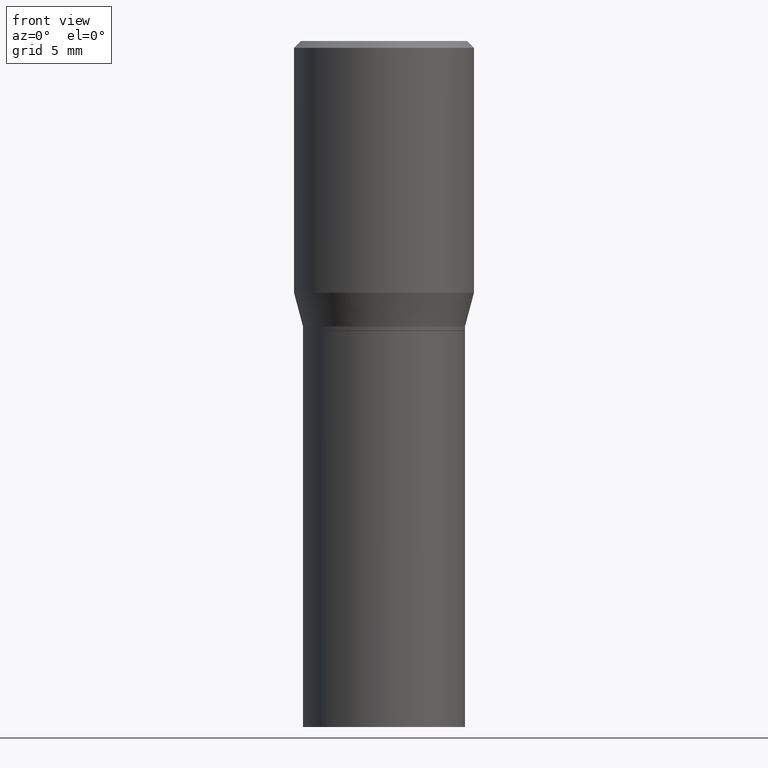
[diagram: clean part render]
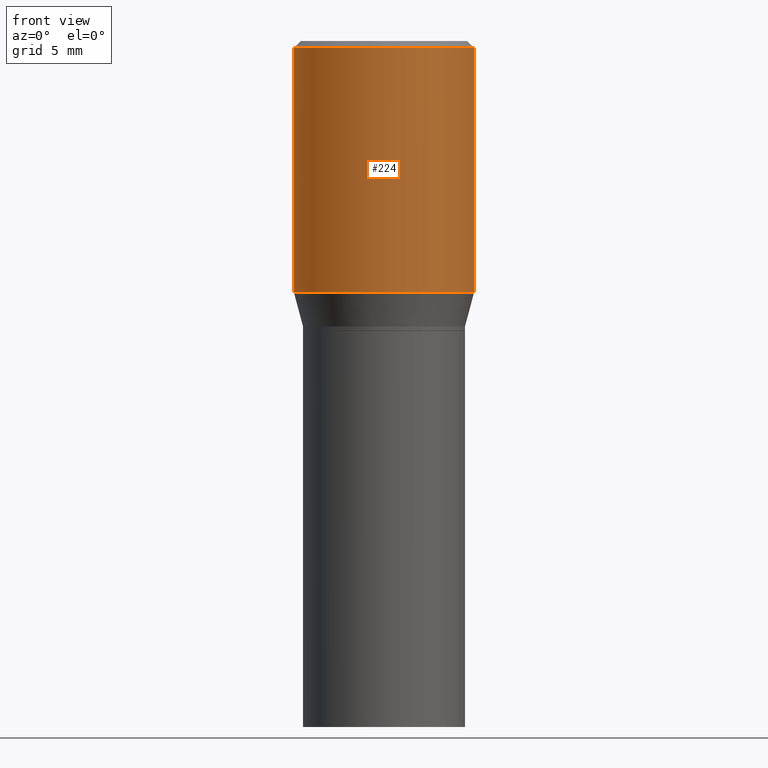
[diagram: same view with one face highlighted and labeled with its STEP entity id]
A machine part, front view. The second image highlights one B-rep face of the part: STEP entity #224.
In plain terms, the highlighted cylindrical surface (partial cylindrical patch) has radius 5 mm, axis along (-0, 0, 1).
Its self-contained STEP definition (entity closure, byte-faithful):
#12 = FACE_OUTER_BOUND ( 'NONE', #234, .T. ) ;
#14 = DIRECTION ( 'NONE',  ( 1.000000000000000000, -6.982962677686267499E-15, 0.000000000000000000 ) ) ;
#19 = ORIENTED_EDGE ( 'NONE', *, *, #386, .T. ) ;
#28 = DIRECTION ( 'NONE',  ( -2.445468806185136597E-29, 3.491481338843145583E-15, 1.000000000000000000 ) ) ;
#34 = VERTEX_POINT ( 'NONE', #294 ) ;
#44 = ORIENTED_EDGE ( 'NONE', *, *, #179, .F. ) ;
#50 = EDGE_CURVE ( 'NONE', #34, #358, #345, .T. ) ;
#51 = VERTEX_POINT ( 'NONE', #56 ) ;
#56 = CARTESIAN_POINT ( 'NONE',  ( 0.1968500000000000250, -1.426968423185188885E-15, -0.01499999999999999944 ) ) ;
#57 = VECTOR ( 'NONE', #357, 39.37007874015748143 ) ;
#99 = AXIS2_PLACEMENT_3D ( 'NONE', #102, #186, #250 ) ;
#102 = CARTESIAN_POINT ( 'NONE',  ( 0.000000000000000000, 0.000000000000000000, 0.000000000000000000 ) ) ;
#113 = CARTESIAN_POINT ( 'NONE',  ( 0.1968500000000000527, -1.374596203102542003E-15, 9.598753983154302260E-30 ) ) ;
#117 = DIRECTION ( 'NONE',  ( 1.000000000000000000, -6.982962677686265922E-15, 0.000000000000000000 ) ) ;
#163 = AXIS2_PLACEMENT_3D ( 'NONE', #306, #326, #14 ) ;
#170 = LINE ( 'NONE', #247, #257 ) ;
#175 = LINE ( 'NONE', #113, #57 ) ;
#179 = EDGE_CURVE ( 'NONE', #34, #237, #170, .T. ) ;
#185 = AXIS2_PLACEMENT_3D ( 'NONE', #297, #28, #117 ) ;
#186 = DIRECTION ( 'NONE',  ( -2.445468806185136597E-29, 3.491481338843145583E-15, 1.000000000000000000 ) ) ;
#224 = ADVANCED_FACE ( 'NONE', ( #12 ), #283, .T. ) ;
#234 = EDGE_LOOP ( 'NONE', ( #44, #446, #19, #267 ) ) ;
#237 = VERTEX_POINT ( 'NONE', #379 ) ;
#244 = CARTESIAN_POINT ( 'NONE',  ( 0.1968500000000000527, -3.296232811127031185E-15, -0.5503785990908939274 ) ) ;
#247 = CARTESIAN_POINT ( 'NONE',  ( -0.1968500000000000527, 1.398703375343757590E-15, -9.682923725166785079E-30 ) ) ;
#250 = DIRECTION ( 'NONE',  ( 1.000000000000000000, -6.982962677686266711E-15, 4.876176775795935793E-29 ) ) ;
#257 = VECTOR ( 'NONE', #271, 39.37007874015748143 ) ;
#267 = ORIENTED_EDGE ( 'NONE', *, *, #311, .F. ) ;
#271 = DIRECTION ( 'NONE',  ( -2.445468806185136877E-29, 3.491481338843145188E-15, 1.000000000000000000 ) ) ;
#272 = CIRCLE ( 'NONE', #185, 0.1968500000000000250 ) ;
#283 = CYLINDRICAL_SURFACE ( 'NONE', #99, 0.1968500000000000527 ) ;
#294 = CARTESIAN_POINT ( 'NONE',  ( -0.1968500000000000527, -5.229332326807317894E-16, -0.5503785990908939274 ) ) ;
#297 = CARTESIAN_POINT ( 'NONE',  ( 3.668203209277705088E-31, -5.237222008264718399E-17, -0.01499999999999999944 ) ) ;
#306 = CARTESIAN_POINT ( 'NONE',  ( 1.345933695668656235E-29, -1.921636608024489183E-15, -0.5503785990908939274 ) ) ;
#311 = EDGE_CURVE ( 'NONE', #237, #51, #272, .T. ) ;
#326 = DIRECTION ( 'NONE',  ( -2.445468806185136597E-29, 3.491481338843145583E-15, 1.000000000000000000 ) ) ;
#345 = CIRCLE ( 'NONE', #163, 0.1968500000000000527 ) ;
#357 = DIRECTION ( 'NONE',  ( -2.445468806185136877E-29, 3.491481338843145188E-15, 1.000000000000000000 ) ) ;
#358 = VERTEX_POINT ( 'NONE', #244 ) ;
#379 = CARTESIAN_POINT ( 'NONE',  ( -0.1968500000000000250, 4.116989612901891144E-16, -0.01499999999999999944 ) ) ;
#386 = EDGE_CURVE ( 'NONE', #358, #51, #175, .T. ) ;
#446 = ORIENTED_EDGE ( 'NONE', *, *, #50, .T. ) ;